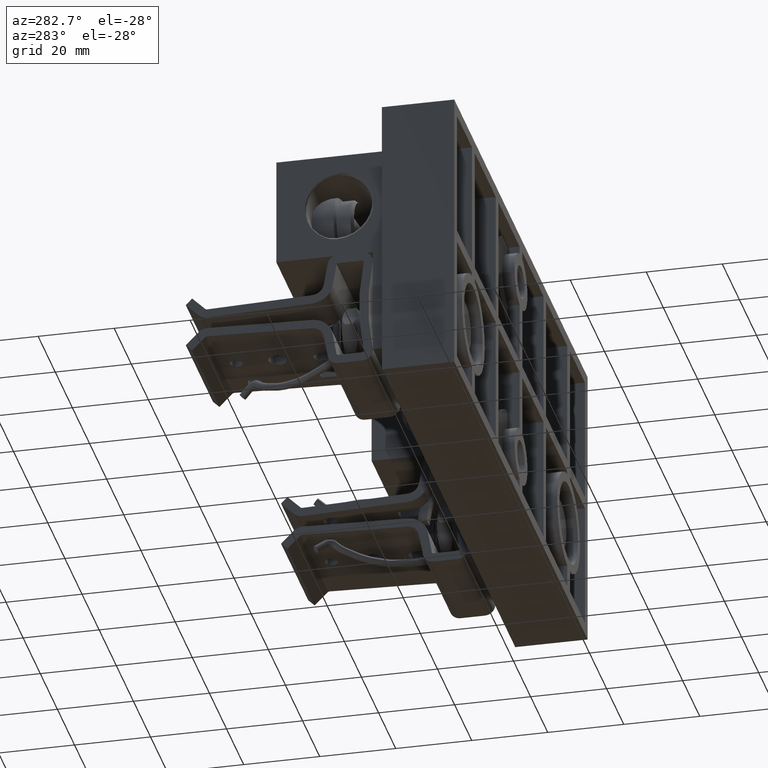
[diagram: clean part render]
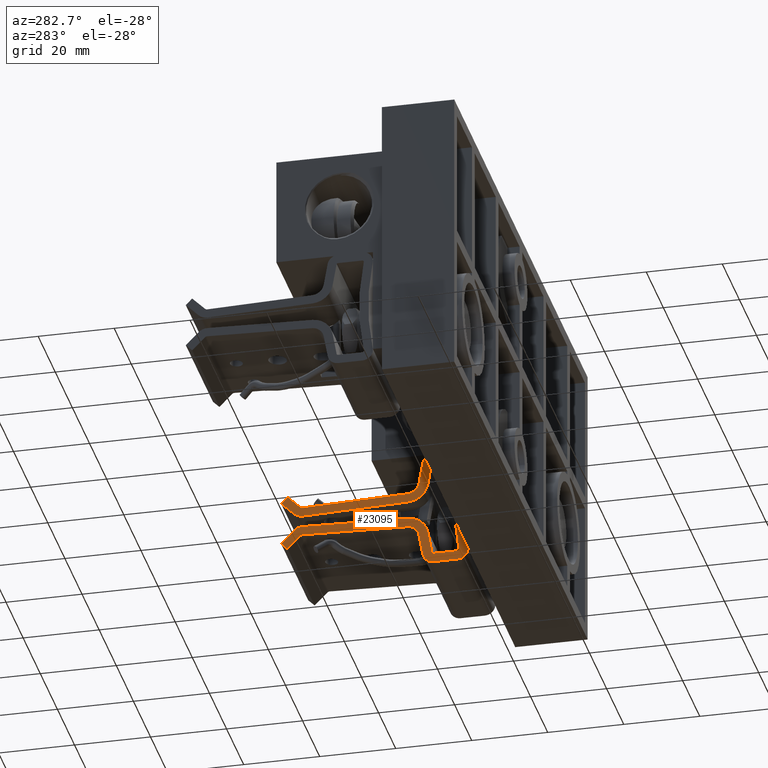
[diagram: same view with one face highlighted and labeled with its STEP entity id]
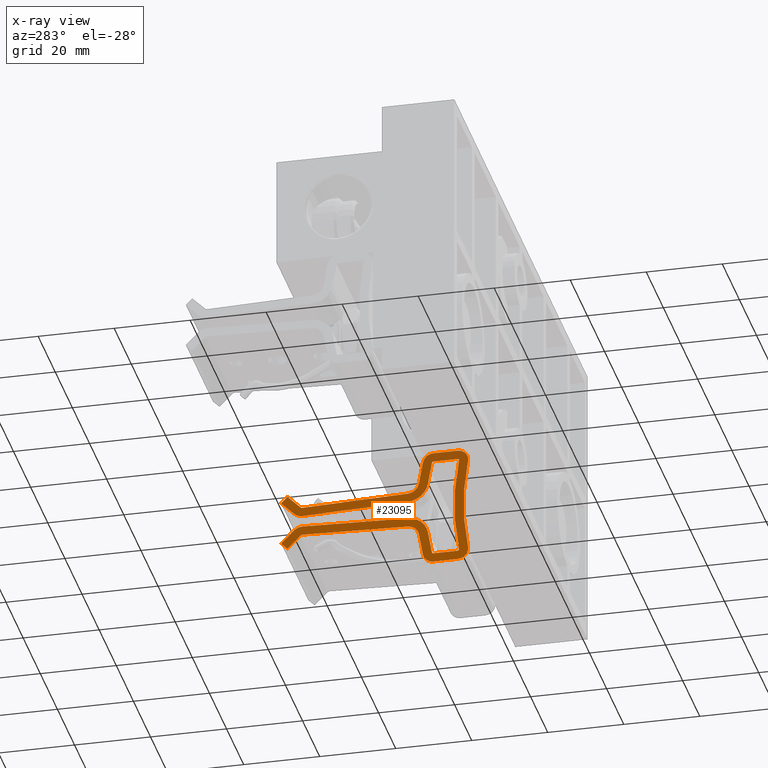
[diagram: x-ray of the same camera — body ghosted, the highlighted face saturated]
A machine part, auxiliary view. The second image highlights one B-rep face of the part: STEP entity #23095.
The next image is the same camera in x-ray: the body ghosted, the highlighted face saturated — about 24% of this face is hidden behind the body in this view.
In plain terms, the highlighted planar face has unit normal (-1, 0, -0).
Its self-contained STEP definition (entity closure, byte-faithful):
#10 = DIRECTION ( 'NONE',  ( 1.000000000000000000, 0.0000000000000000000, 2.775557561562890700E-017 ) ) ;
#108 = ORIENTED_EDGE ( 'NONE', *, *, #25646, .F. ) ;
#257 = VERTEX_POINT ( 'NONE', #19297 ) ;
#578 = EDGE_CURVE ( 'NONE', #28348, #18298, #21159, .T. ) ;
#592 = AXIS2_PLACEMENT_3D ( 'NONE', #13398, #31568, #16027 ) ;
#911 = VECTOR ( 'NONE', #9061, 39.37007874015748100 ) ;
#1053 = VERTEX_POINT ( 'NONE', #12127 ) ;
#1150 = DIRECTION ( 'NONE',  ( 8.693630771853350400E-019, -0.9995093424703525000, -0.03132210584369223700 ) ) ;
#1225 = DIRECTION ( 'NONE',  ( 0.0000000000000000000, 0.0000000000000000000, -1.000000000000000000 ) ) ;
#1336 = DIRECTION ( 'NONE',  ( -2.775557561562890700E-017, 1.232595164407830700E-032, 1.000000000000000000 ) ) ;
#1448 = AXIS2_PLACEMENT_3D ( 'NONE', #18674, #3117, #21254 ) ;
#1461 = CARTESIAN_POINT ( 'NONE',  ( 1.565000000000000400, 1.368328852831342600, -0.09189870045663711700 ) ) ;
#1486 = CARTESIAN_POINT ( 'NONE',  ( 1.565000000000000400, 1.533185342012008300, -0.9329999999999992700 ) ) ;
#1648 = VECTOR ( 'NONE', #8983, 39.37007874015748900 ) ;
#1763 = EDGE_CURVE ( 'NONE', #257, #4635, #23359, .T. ) ;
#1887 = CIRCLE ( 'NONE', #8505, 2.706760416666660800 ) ;
#1983 = VERTEX_POINT ( 'NONE', #10608 ) ;
#2396 = CARTESIAN_POINT ( 'NONE',  ( 1.565000000000000400, 0.9019392084473099000, -1.108436310423321000 ) ) ;
#2709 = CARTESIAN_POINT ( 'NONE',  ( 1.565000000000000400, 2.705063925136928800, -0.5233883476483175400 ) ) ;
#2778 = EDGE_CURVE ( 'NONE', #23495, #4005, #1887, .T. ) ;
#2886 = CARTESIAN_POINT ( 'NONE',  ( 1.565000000000000400, 2.771531962568464500, -0.9160157646462878700 ) ) ;
#3117 = DIRECTION ( 'NONE',  ( -1.000000000000000000, 0.0000000000000000000, -2.775557561562890700E-017 ) ) ;
#3402 = DIRECTION ( 'NONE',  ( -1.000000000000000000, 0.0000000000000000000, -2.775557561562890700E-017 ) ) ;
#3415 = LINE ( 'NONE', #8402, #8734 ) ;
#3620 = VECTOR ( 'NONE', #10872, 39.37007874015748100 ) ;
#3667 = VECTOR ( 'NONE', #20919, 39.37007874015748100 ) ;
#3874 = PLANE ( 'NONE',  #11065 ) ;
#3933 = EDGE_CURVE ( 'NONE', #1983, #257, #3415, .T. ) ;
#4005 = VERTEX_POINT ( 'NONE', #31984 ) ;
#4076 = ORIENTED_EDGE ( 'NONE', *, *, #14617, .F. ) ;
#4126 = DIRECTION ( 'NONE',  ( 0.0000000000000000000, 0.0000000000000000000, 1.000000000000000000 ) ) ;
#4147 = CARTESIAN_POINT ( 'NONE',  ( 1.565000000000000400, 2.705063925136928800, -0.5233883476483175400 ) ) ;
#4171 = LINE ( 'NONE', #16249, #30967 ) ;
#4308 = CARTESIAN_POINT ( 'NONE',  ( 1.565000000000000400, 2.612760314258148600, -0.5599386678087933100 ) ) ;
#4404 = CARTESIAN_POINT ( 'NONE',  ( 1.565000000000000400, 1.529270078781546500, -0.8080613321912053500 ) ) ;
#4463 = EDGE_CURVE ( 'NONE', #21452, #30017, #20781, .T. ) ;
#4563 = AXIS2_PLACEMENT_3D ( 'NONE', #21907, #6391, #24583 ) ;
#4635 = VERTEX_POINT ( 'NONE', #25459 ) ;
#4939 = DIRECTION ( 'NONE',  ( 0.0000000000000000000, 0.0000000000000000000, 1.000000000000000000 ) ) ;
#5053 = DIRECTION ( 'NONE',  ( -1.000000000000000000, 0.0000000000000000000, -2.775557561562890700E-017 ) ) ;
#5068 = ORIENTED_EDGE ( 'NONE', *, *, #33281, .F. ) ;
#5180 = VERTEX_POINT ( 'NONE', #17858 ) ;
#5211 = EDGE_CURVE ( 'NONE', #18298, #26396, #21912, .T. ) ;
#5227 = CARTESIAN_POINT ( 'NONE',  ( 1.565000000000000400, 1.260000000000000000, -0.1109999999999991000 ) ) ;
#5317 = VERTEX_POINT ( 'NONE', #11439 ) ;
#5395 = DIRECTION ( 'NONE',  ( 1.208331480069094700E-032, 1.000000000000000000, -5.463695987328529400E-016 ) ) ;
#5603 = VERTEX_POINT ( 'NONE', #2396 ) ;
#5732 = CARTESIAN_POINT ( 'NONE',  ( 1.565000000000000400, 1.275756924048195200, -1.131778370842670300 ) ) ;
#5815 = DIRECTION ( 'NONE',  ( 1.962615573354725700E-017, 0.7071067811865446900, -0.7071067811865502400 ) ) ;
#5835 = EDGE_CURVE ( 'NONE', #5180, #6478, #7632, .T. ) ;
#5851 = EDGE_CURVE ( 'NONE', #26151, #20036, #27533, .T. ) ;
#5899 = CIRCLE ( 'NONE', #30177, 0.1099999999999999600 ) ;
#5921 = DIRECTION ( 'NONE',  ( -2.733390605558794900E-017, 0.1736481776669270300, 0.9848077530122085800 ) ) ;
#6003 = CARTESIAN_POINT ( 'NONE',  ( 1.565000000000000400, 2.616675577488610100, -0.4349999999999992800 ) ) ;
#6128 = LINE ( 'NONE', #11703, #13015 ) ;
#6147 = CIRCLE ( 'NONE', #18237, 0.03099999999999995500 ) ;
#6303 = ORIENTED_EDGE ( 'NONE', *, *, #7956, .F. ) ;
#6317 = EDGE_CURVE ( 'NONE', #30999, #20492, #20090, .T. ) ;
#6318 = VECTOR ( 'NONE', #20807, 39.37007874015748100 ) ;
#6359 = LINE ( 'NONE', #15720, #12459 ) ;
#6391 = DIRECTION ( 'NONE',  ( 1.000000000000000000, 0.0000000000000000000, 2.775557561562890700E-017 ) ) ;
#6435 = DIRECTION ( 'NONE',  ( 1.000000000000000000, 0.0000000000000000000, 2.775557561562890700E-017 ) ) ;
#6466 = VECTOR ( 'NONE', #1150, 39.37007874015748900 ) ;
#6478 = VERTEX_POINT ( 'NONE', #28891 ) ;
#6479 = CARTESIAN_POINT ( 'NONE',  ( 1.565000000000000400, 1.009999999999999800, -1.128999999999999300 ) ) ;
#6722 = CARTESIAN_POINT ( 'NONE',  ( 1.565000000000000400, 2.771531962568464500, -0.3239842353537106300 ) ) ;
#7098 = DIRECTION ( 'NONE',  ( 1.000000000000000000, 0.0000000000000000000, 2.775557561562890700E-017 ) ) ;
#7351 = ORIENTED_EDGE ( 'NONE', *, *, #10119, .F. ) ;
#7410 = VECTOR ( 'NONE', #29572, 39.37007874015748900 ) ;
#7512 = EDGE_CURVE ( 'NONE', #25618, #26151, #9459, .T. ) ;
#7632 = CIRCLE ( 'NONE', #14851, 0.1100000000000000300 ) ;
#7674 = EDGE_CURVE ( 'NONE', #20492, #20075, #10601, .T. ) ;
#7733 = LINE ( 'NONE', #12174, #28418 ) ;
#7956 = EDGE_CURVE ( 'NONE', #14088, #19669, #27201, .T. ) ;
#8158 = ORIENTED_EDGE ( 'NONE', *, *, #8573, .F. ) ;
#8310 = CARTESIAN_POINT ( 'NONE',  ( 1.565000000000000400, 1.260000000000000000, -1.144999999999999400 ) ) ;
#8321 = CARTESIAN_POINT ( 'NONE',  ( 1.565000000000000400, 1.009999999999999800, -0.1109999999999991000 ) ) ;
#8347 = ORIENTED_EDGE ( 'NONE', *, *, #27508, .F. ) ;
#8361 = CIRCLE ( 'NONE', #12370, 0.1250000000000000300 ) ;
#8402 = CARTESIAN_POINT ( 'NONE',  ( 1.565000000000000400, 1.009999999999999800, -0.09499999999999912700 ) ) ;
#8430 = CIRCLE ( 'NONE', #1448, 0.1250000000000000300 ) ;
#8505 = AXIS2_PLACEMENT_3D ( 'NONE', #24563, #9027, #27164 ) ;
#8573 = EDGE_CURVE ( 'NONE', #23989, #28348, #8430, .T. ) ;
#8634 = DIRECTION ( 'NONE',  ( 0.0000000000000000000, 0.0000000000000000000, -1.000000000000000000 ) ) ;
#8734 = VECTOR ( 'NONE', #16207, 39.37007874015748100 ) ;
#8822 = DIRECTION ( 'NONE',  ( 1.000000000000000000, 0.0000000000000000000, 2.775557561562890700E-017 ) ) ;
#8872 = EDGE_CURVE ( 'NONE', #20075, #14088, #8361, .T. ) ;
#8983 = DIRECTION ( 'NONE',  ( -8.693630771853283000E-019, -0.9995093424703525000, 0.03132210584369221600 ) ) ;
#9027 = DIRECTION ( 'NONE',  ( 1.000000000000000000, 0.0000000000000000000, 2.775557561562890700E-017 ) ) ;
#9061 = DIRECTION ( 'NONE',  ( -1.208331480069094200E-032, -1.000000000000000000, 5.463695987328527400E-016 ) ) ;
#9133 = DIRECTION ( 'NONE',  ( 0.0000000000000000000, 0.0000000000000000000, 1.000000000000000000 ) ) ;
#9283 = VERTEX_POINT ( 'NONE', #29422 ) ;
#9459 = LINE ( 'NONE', #24527, #1648 ) ;
#9503 = VERTEX_POINT ( 'NONE', #27819 ) ;
#9809 = DIRECTION ( 'NONE',  ( 2.733390605558795200E-017, 0.1736481776669266400, -0.9848077530122085800 ) ) ;
#9844 = VECTOR ( 'NONE', #19630, 39.37007874015748100 ) ;
#9948 = DIRECTION ( 'NONE',  ( -1.000000000000000000, 0.0000000000000000000, -2.775557561562890700E-017 ) ) ;
#9994 = VERTEX_POINT ( 'NONE', #32009 ) ;
#10056 = EDGE_CURVE ( 'NONE', #4635, #26429, #7733, .T. ) ;
#10119 = EDGE_CURVE ( 'NONE', #6478, #5603, #17478, .T. ) ;
#10246 = DIRECTION ( 'NONE',  ( -1.000000000000000000, 0.0000000000000000000, -2.775557561562890700E-017 ) ) ;
#10450 = CARTESIAN_POINT ( 'NONE',  ( 1.565000000000000400, 2.771531962568464500, -0.9160157646462878700 ) ) ;
#10601 = LINE ( 'NONE', #26078, #3667 ) ;
#10608 = CARTESIAN_POINT ( 'NONE',  ( 1.565000000000000400, 1.009999999999999800, -0.09499999999999912700 ) ) ;
#10655 = LINE ( 'NONE', #28946, #16731 ) ;
#10658 = CARTESIAN_POINT ( 'NONE',  ( 1.565000000000000400, 2.837999999999999600, -0.3904522727852462500 ) ) ;
#10872 = DIRECTION ( 'NONE',  ( 2.733390605558795200E-017, -0.1736481776669276900, -0.9848077530122085800 ) ) ;
#10946 = DIRECTION ( 'NONE',  ( 0.0000000000000000000, 0.0000000000000000000, 1.000000000000000000 ) ) ;
#11065 = AXIS2_PLACEMENT_3D ( 'NONE', #32488, #16941, #1336 ) ;
#11439 = CARTESIAN_POINT ( 'NONE',  ( 1.565000000000000400, 1.526325800832239600, -0.5258925460010064300 ) ) ;
#11591 = ORIENTED_EDGE ( 'NONE', *, *, #7512, .F. ) ;
#11676 = AXIS2_PLACEMENT_3D ( 'NONE', #6479, #24670, #9133 ) ;
#11703 = CARTESIAN_POINT ( 'NONE',  ( 1.565000000000000400, 2.638595887705393700, -0.4569203102167820900 ) ) ;
#12127 = CARTESIAN_POINT ( 'NONE',  ( 1.565000000000000400, 1.260000000000000000, -0.0009999999999992517000 ) ) ;
#12174 = CARTESIAN_POINT ( 'NONE',  ( 1.565000000000000400, 1.275756924048195200, -0.1082216291573282500 ) ) ;
#12370 = AXIS2_PLACEMENT_3D ( 'NONE', #22618, #7098, #25279 ) ;
#12459 = VECTOR ( 'NONE', #5395, 39.37007874015748100 ) ;
#12482 = EDGE_CURVE ( 'NONE', #24918, #25618, #6147, .T. ) ;
#12521 = ORIENTED_EDGE ( 'NONE', *, *, #1763, .F. ) ;
#12869 = DIRECTION ( 'NONE',  ( -1.000000000000000000, 0.0000000000000000000, -2.775557561562890700E-017 ) ) ;
#13015 = VECTOR ( 'NONE', #32462, 39.37007874015748100 ) ;
#13398 = CARTESIAN_POINT ( 'NONE',  ( 1.565000000000000400, 1.533185342012008300, -0.3069999999999991600 ) ) ;
#13529 = CARTESIAN_POINT ( 'NONE',  ( 1.565000000000000400, 2.615704592207456000, -0.7740152103834183600 ) ) ;
#13687 = ORIENTED_EDGE ( 'NONE', *, *, #29595, .F. ) ;
#13703 = AXIS2_PLACEMENT_3D ( 'NONE', #21949, #6435, #24627 ) ;
#14088 = VERTEX_POINT ( 'NONE', #16131 ) ;
#14171 = EDGE_CURVE ( 'NONE', #14861, #23989, #4171, .T. ) ;
#14295 = CIRCLE ( 'NONE', #592, 0.2190000000000001100 ) ;
#14617 = EDGE_CURVE ( 'NONE', #17216, #24918, #6128, .T. ) ;
#14851 = AXIS2_PLACEMENT_3D ( 'NONE', #8321, #26473, #10946 ) ;
#14861 = VERTEX_POINT ( 'NONE', #17564 ) ;
#14873 = LINE ( 'NONE', #4147, #20125 ) ;
#14919 = LINE ( 'NONE', #27431, #20972 ) ;
#15328 = ORIENTED_EDGE ( 'NONE', *, *, #7674, .F. ) ;
#15611 = ORIENTED_EDGE ( 'NONE', *, *, #5851, .F. ) ;
#15639 = CARTESIAN_POINT ( 'NONE',  ( 1.565000000000000400, 1.260000000000000000, -1.128999999999999300 ) ) ;
#15720 = CARTESIAN_POINT ( 'NONE',  ( 1.565000000000000400, 1.009999999999999800, -1.238999999999999200 ) ) ;
#15729 = EDGE_LOOP ( 'NONE', ( #32953, #6303, #29192, #15328, #19902, #20447, #29431, #28004, #8158, #28194, #23774, #20926, #32321, #7351, #22087, #31207, #30319, #21900, #15611, #11591, #23116, #4076, #24162, #5068, #13687, #8347, #23157, #18037, #12521, #30165, #25256, #26168, #26732, #18229, #26830, #108 ) ) ;
#16027 = DIRECTION ( 'NONE',  ( 0.0000000000000000000, 0.0000000000000000000, -1.000000000000000000 ) ) ;
#16131 = CARTESIAN_POINT ( 'NONE',  ( 1.565000000000000400, 2.612760314258148600, -0.6800613321912052400 ) ) ;
#16207 = DIRECTION ( 'NONE',  ( -3.081487911019577400E-033, 1.000000000000000000, 3.697785493223492800E-032 ) ) ;
#16249 = CARTESIAN_POINT ( 'NONE',  ( 1.565000000000000400, 1.368328852831342600, -1.148101299543361500 ) ) ;
#16350 = VERTEX_POINT ( 'NONE', #10658 ) ;
#16573 = CARTESIAN_POINT ( 'NONE',  ( 1.565000000000000400, 1.410084372885482200, -0.3287060222083650300 ) ) ;
#16620 = AXIS2_PLACEMENT_3D ( 'NONE', #18956, #3402, #21541 ) ;
#16651 = CARTESIAN_POINT ( 'NONE',  ( 1.565000000000000400, 1.410084372885482200, -0.9112939777916334600 ) ) ;
#16731 = VECTOR ( 'NONE', #31572, 39.37007874015748900 ) ;
#16831 = DIRECTION ( 'NONE',  ( -1.000000000000000000, 0.0000000000000000000, -2.775557561562890700E-017 ) ) ;
#16941 = DIRECTION ( 'NONE',  ( -1.000000000000000000, 3.798227098303919500E-065, -2.775557561562890700E-017 ) ) ;
#17100 = DIRECTION ( 'NONE',  ( 3.081487911019577400E-033, -1.000000000000000000, -3.697785493223492800E-032 ) ) ;
#17102 = DIRECTION ( 'NONE',  ( -1.962615573354721400E-017, 0.7071067811865465700, 0.7071067811865484600 ) ) ;
#17216 = VERTEX_POINT ( 'NONE', #6722 ) ;
#17478 = CIRCLE ( 'NONE', #17515, 2.612760416666660500 ) ;
#17515 = AXIS2_PLACEMENT_3D ( 'NONE', #25780, #10246, #28357 ) ;
#17564 = CARTESIAN_POINT ( 'NONE',  ( 1.565000000000000400, 1.368328852831342600, -1.148101299543361500 ) ) ;
#17600 = CARTESIAN_POINT ( 'NONE',  ( 1.565000000000000400, 1.526325800832239600, -0.7141074539989921100 ) ) ;
#17746 = CARTESIAN_POINT ( 'NONE',  ( 1.565000000000000400, 1.526325800832239600, -0.5258925460010064300 ) ) ;
#17835 = CIRCLE ( 'NONE', #13703, 0.1099999999999996400 ) ;
#17858 = CARTESIAN_POINT ( 'NONE',  ( 1.565000000000000400, 1.009999999999999800, -0.0009999999999991151000 ) ) ;
#17908 = CARTESIAN_POINT ( 'NONE',  ( 1.565000000000000400, 2.638595887705393700, -0.4569203102167820900 ) ) ;
#18032 = EDGE_CURVE ( 'NONE', #30017, #9994, #14919, .T. ) ;
#18037 = ORIENTED_EDGE ( 'NONE', *, *, #10056, .F. ) ;
#18222 = DIRECTION ( 'NONE',  ( 0.0000000000000000000, 0.0000000000000000000, -1.000000000000000000 ) ) ;
#18229 = ORIENTED_EDGE ( 'NONE', *, *, #18032, .F. ) ;
#18237 = AXIS2_PLACEMENT_3D ( 'NONE', #6003, #24185, #8634 ) ;
#18259 = EDGE_CURVE ( 'NONE', #9503, #31922, #6359, .T. ) ;
#18298 = VERTEX_POINT ( 'NONE', #13529 ) ;
#18428 = CARTESIAN_POINT ( 'NONE',  ( 1.565000000000000400, 2.615704592207455500, -0.4659847896165801300 ) ) ;
#18620 = CARTESIAN_POINT ( 'NONE',  ( 1.565000000000000400, 1.529270078781546500, -0.8080613321912053500 ) ) ;
#18674 = CARTESIAN_POINT ( 'NONE',  ( 1.565000000000000400, 1.533185342012008300, -0.9329999999999992700 ) ) ;
#18944 = CIRCLE ( 'NONE', #24553, 0.01599999999999975700 ) ;
#18956 = CARTESIAN_POINT ( 'NONE',  ( 1.565000000000000400, 1.533185342012008300, -0.3069999999999991600 ) ) ;
#19074 = CARTESIAN_POINT ( 'NONE',  ( 1.565000000000000400, 1.275756924048195200, -1.131778370842670300 ) ) ;
#19297 = CARTESIAN_POINT ( 'NONE',  ( 1.565000000000000400, 1.260000000000000000, -0.09499999999999912700 ) ) ;
#19381 = EDGE_CURVE ( 'NONE', #9994, #23495, #33790, .T. ) ;
#19456 = EDGE_CURVE ( 'NONE', #20036, #9283, #23618, .T. ) ;
#19630 = DIRECTION ( 'NONE',  ( -2.733390605558795200E-017, -0.1736481776669272500, 0.9848077530122085800 ) ) ;
#19661 = DIRECTION ( 'NONE',  ( 1.000000000000000000, 0.0000000000000000000, 2.775557561562890700E-017 ) ) ;
#19669 = VERTEX_POINT ( 'NONE', #17600 ) ;
#19814 = VERTEX_POINT ( 'NONE', #33600 ) ;
#19902 = ORIENTED_EDGE ( 'NONE', *, *, #6317, .F. ) ;
#20036 = VERTEX_POINT ( 'NONE', #16573 ) ;
#20075 = VERTEX_POINT ( 'NONE', #27005 ) ;
#20090 = LINE ( 'NONE', #2886, #6318 ) ;
#20120 = LINE ( 'NONE', #21200, #27070 ) ;
#20125 = VECTOR ( 'NONE', #17102, 39.37007874015748900 ) ;
#20318 = DIRECTION ( 'NONE',  ( 8.693630771853292600E-019, 0.9995093424703525000, -0.03132210584369225100 ) ) ;
#20447 = ORIENTED_EDGE ( 'NONE', *, *, #22928, .F. ) ;
#20492 = VERTEX_POINT ( 'NONE', #32071 ) ;
#20522 = EDGE_CURVE ( 'NONE', #4005, #1983, #18944, .T. ) ;
#20781 = CIRCLE ( 'NONE', #26401, 0.01600000000000004900 ) ;
#20807 = DIRECTION ( 'NONE',  ( -1.962615573354716500E-017, 0.7071067811865483500, 0.7071067811865466800 ) ) ;
#20878 = AXIS2_PLACEMENT_3D ( 'NONE', #28410, #12869, #31029 ) ;
#20919 = DIRECTION ( 'NONE',  ( -1.962615573354723000E-017, -0.7071067811865459100, 0.7071067811865492400 ) ) ;
#20926 = ORIENTED_EDGE ( 'NONE', *, *, #18259, .F. ) ;
#20970 = EDGE_CURVE ( 'NONE', #9283, #1053, #5899, .T. ) ;
#20972 = VECTOR ( 'NONE', #17100, 39.37007874015748100 ) ;
#21022 = EDGE_CURVE ( 'NONE', #19669, #19814, #22077, .T. ) ;
#21118 = CARTESIAN_POINT ( 'NONE',  ( 1.565000000000000400, 1.317512444102334500, -0.3450289509090560500 ) ) ;
#21159 = LINE ( 'NONE', #4404, #7410 ) ;
#21200 = CARTESIAN_POINT ( 'NONE',  ( 1.565000000000000400, 2.638595887705393700, -0.7830796897832164000 ) ) ;
#21254 = DIRECTION ( 'NONE',  ( 0.0000000000000000000, 0.0000000000000000000, 1.000000000000000000 ) ) ;
#21447 = CARTESIAN_POINT ( 'NONE',  ( 1.565000000000000400, 1.260000000000000000, -1.238999999999999400 ) ) ;
#21452 = VERTEX_POINT ( 'NONE', #19074 ) ;
#21541 = DIRECTION ( 'NONE',  ( 0.0000000000000000000, 0.0000000000000000000, -1.000000000000000000 ) ) ;
#21900 = ORIENTED_EDGE ( 'NONE', *, *, #19456, .F. ) ;
#21907 = CARTESIAN_POINT ( 'NONE',  ( 1.565000000000000400, 2.616675577488610100, -0.4349999999999992800 ) ) ;
#21912 = CIRCLE ( 'NONE', #20878, 0.03100000000000002400 ) ;
#21949 = CARTESIAN_POINT ( 'NONE',  ( 1.565000000000000400, 1.009999999999999800, -1.128999999999999300 ) ) ;
#22077 = CIRCLE ( 'NONE', #29530, 0.2190000000000000300 ) ;
#22087 = ORIENTED_EDGE ( 'NONE', *, *, #5835, .F. ) ;
#22305 = AXIS2_PLACEMENT_3D ( 'NONE', #5227, #5053, #4939 ) ;
#22618 = CARTESIAN_POINT ( 'NONE',  ( 1.565000000000000400, 2.616675577488611000, -0.8049999999999993800 ) ) ;
#22928 = EDGE_CURVE ( 'NONE', #26396, #30999, #20120, .T. ) ;
#23095 = ADVANCED_FACE ( 'NONE', ( #27047 ), #3874, .T. ) ;
#23116 = ORIENTED_EDGE ( 'NONE', *, *, #12482, .F. ) ;
#23157 = ORIENTED_EDGE ( 'NONE', *, *, #24447, .F. ) ;
#23359 = CIRCLE ( 'NONE', #22305, 0.01599999999999998000 ) ;
#23495 = VERTEX_POINT ( 'NONE', #24970 ) ;
#23525 = LINE ( 'NONE', #5732, #3620 ) ;
#23618 = LINE ( 'NONE', #1461, #9844 ) ;
#23774 = ORIENTED_EDGE ( 'NONE', *, *, #27180, .F. ) ;
#23989 = VERTEX_POINT ( 'NONE', #16651 ) ;
#24162 = ORIENTED_EDGE ( 'NONE', *, *, #27774, .F. ) ;
#24185 = DIRECTION ( 'NONE',  ( -1.000000000000000000, 0.0000000000000000000, -2.775557561562890700E-017 ) ) ;
#24280 = AXIS2_PLACEMENT_3D ( 'NONE', #15639, #10, #18222 ) ;
#24372 = CARTESIAN_POINT ( 'NONE',  ( 1.565000000000000400, 1.260000000000000000, -0.1109999999999991000 ) ) ;
#24447 = EDGE_CURVE ( 'NONE', #26429, #5317, #14295, .T. ) ;
#24503 = VECTOR ( 'NONE', #20318, 39.37007874015748900 ) ;
#24527 = CARTESIAN_POINT ( 'NONE',  ( 1.565000000000000400, 1.529270078781546500, -0.4319386678087933100 ) ) ;
#24553 = AXIS2_PLACEMENT_3D ( 'NONE', #25497, #9948, #28077 ) ;
#24563 = CARTESIAN_POINT ( 'NONE',  ( 1.565000000000000400, -1.664760416666659600, -0.6199999999999994400 ) ) ;
#24583 = DIRECTION ( 'NONE',  ( 0.0000000000000000000, 0.0000000000000000000, -1.000000000000000000 ) ) ;
#24602 = CARTESIAN_POINT ( 'NONE',  ( 1.565000000000000400, 1.009999999999999800, -0.0009999999999991151000 ) ) ;
#24627 = DIRECTION ( 'NONE',  ( 0.0000000000000000000, 0.0000000000000000000, 1.000000000000000000 ) ) ;
#24670 = DIRECTION ( 'NONE',  ( -1.000000000000000000, 0.0000000000000000000, -2.775557561562890700E-017 ) ) ;
#24918 = VERTEX_POINT ( 'NONE', #17908 ) ;
#24970 = CARTESIAN_POINT ( 'NONE',  ( 1.565000000000000400, 0.9942820666832451500, -1.126008917879755400 ) ) ;
#25216 = EDGE_CURVE ( 'NONE', #5603, #9503, #17835, .T. ) ;
#25256 = ORIENTED_EDGE ( 'NONE', *, *, #20522, .F. ) ;
#25279 = DIRECTION ( 'NONE',  ( 0.0000000000000000000, 0.0000000000000000000, 1.000000000000000000 ) ) ;
#25459 = CARTESIAN_POINT ( 'NONE',  ( 1.565000000000000400, 1.275756924048195200, -0.1082216291573282500 ) ) ;
#25497 = CARTESIAN_POINT ( 'NONE',  ( 1.565000000000000400, 1.009999999999999800, -0.1109999999999991000 ) ) ;
#25618 = VERTEX_POINT ( 'NONE', #18428 ) ;
#25646 = EDGE_CURVE ( 'NONE', #19814, #21452, #23525, .T. ) ;
#25780 = CARTESIAN_POINT ( 'NONE',  ( 1.565000000000000400, -1.664760416666659600, -0.6199999999999994400 ) ) ;
#26078 = CARTESIAN_POINT ( 'NONE',  ( 1.565000000000000400, 2.705063925136928800, -0.7166116523516811200 ) ) ;
#26151 = VERTEX_POINT ( 'NONE', #33093 ) ;
#26168 = ORIENTED_EDGE ( 'NONE', *, *, #2778, .F. ) ;
#26388 = CARTESIAN_POINT ( 'NONE',  ( 1.565000000000000400, 2.638595887705393700, -0.7830796897832164000 ) ) ;
#26396 = VERTEX_POINT ( 'NONE', #26388 ) ;
#26401 = AXIS2_PLACEMENT_3D ( 'NONE', #32399, #16831, #1225 ) ;
#26429 = VERTEX_POINT ( 'NONE', #21118 ) ;
#26473 = DIRECTION ( 'NONE',  ( 1.000000000000000000, 0.0000000000000000000, 2.775557561562890700E-017 ) ) ;
#26732 = ORIENTED_EDGE ( 'NONE', *, *, #19381, .F. ) ;
#26830 = ORIENTED_EDGE ( 'NONE', *, *, #4463, .F. ) ;
#26917 = CIRCLE ( 'NONE', #24280, 0.1099999999999999200 ) ;
#26964 = DIRECTION ( 'NONE',  ( 0.0000000000000000000, 0.0000000000000000000, 1.000000000000000000 ) ) ;
#27005 = CARTESIAN_POINT ( 'NONE',  ( 1.565000000000000400, 2.705063925136928800, -0.7166116523516810100 ) ) ;
#27047 = FACE_OUTER_BOUND ( 'NONE', #15729, .T. ) ;
#27064 = VERTEX_POINT ( 'NONE', #4308 ) ;
#27070 = VECTOR ( 'NONE', #5815, 39.37007874015748900 ) ;
#27164 = DIRECTION ( 'NONE',  ( 0.0000000000000000000, 0.0000000000000000000, 1.000000000000000000 ) ) ;
#27180 = EDGE_CURVE ( 'NONE', #31922, #14861, #26917, .T. ) ;
#27191 = EDGE_CURVE ( 'NONE', #1053, #5180, #27758, .T. ) ;
#27201 = LINE ( 'NONE', #32324, #6466 ) ;
#27431 = CARTESIAN_POINT ( 'NONE',  ( 1.565000000000000400, 1.009999999999999800, -1.144999999999999400 ) ) ;
#27508 = EDGE_CURVE ( 'NONE', #5317, #27064, #31361, .T. ) ;
#27533 = CIRCLE ( 'NONE', #16620, 0.1250000000000001100 ) ;
#27758 = LINE ( 'NONE', #24602, #911 ) ;
#27774 = EDGE_CURVE ( 'NONE', #16350, #17216, #10655, .T. ) ;
#27819 = CARTESIAN_POINT ( 'NONE',  ( 1.565000000000000400, 1.009999999999999800, -1.238999999999999200 ) ) ;
#28004 = ORIENTED_EDGE ( 'NONE', *, *, #578, .F. ) ;
#28077 = DIRECTION ( 'NONE',  ( 0.0000000000000000000, 0.0000000000000000000, 1.000000000000000000 ) ) ;
#28194 = ORIENTED_EDGE ( 'NONE', *, *, #14171, .F. ) ;
#28348 = VERTEX_POINT ( 'NONE', #18620 ) ;
#28357 = DIRECTION ( 'NONE',  ( 0.0000000000000000000, 0.0000000000000000000, 1.000000000000000000 ) ) ;
#28410 = CARTESIAN_POINT ( 'NONE',  ( 1.565000000000000400, 2.616675577488611000, -0.8049999999999993800 ) ) ;
#28418 = VECTOR ( 'NONE', #9809, 39.37007874015748900 ) ;
#28891 = CARTESIAN_POINT ( 'NONE',  ( 1.565000000000000400, 0.9019392084473096800, -0.1315636895766766300 ) ) ;
#28946 = CARTESIAN_POINT ( 'NONE',  ( 1.565000000000000400, 2.771531962568464500, -0.3239842353537106300 ) ) ;
#29192 = ORIENTED_EDGE ( 'NONE', *, *, #8872, .F. ) ;
#29422 = CARTESIAN_POINT ( 'NONE',  ( 1.565000000000000400, 1.368328852831342600, -0.09189870045663711700 ) ) ;
#29431 = ORIENTED_EDGE ( 'NONE', *, *, #5211, .F. ) ;
#29530 = AXIS2_PLACEMENT_3D ( 'NONE', #1486, #19661, #4126 ) ;
#29572 = DIRECTION ( 'NONE',  ( -8.693630771853352300E-019, 0.9995093424703525000, 0.03132210584369225100 ) ) ;
#29595 = EDGE_CURVE ( 'NONE', #27064, #32257, #29858, .T. ) ;
#29858 = CIRCLE ( 'NONE', #4563, 0.1250000000000001100 ) ;
#30017 = VERTEX_POINT ( 'NONE', #8310 ) ;
#30165 = ORIENTED_EDGE ( 'NONE', *, *, #3933, .F. ) ;
#30177 = AXIS2_PLACEMENT_3D ( 'NONE', #24372, #8822, #26964 ) ;
#30319 = ORIENTED_EDGE ( 'NONE', *, *, #20970, .F. ) ;
#30967 = VECTOR ( 'NONE', #5921, 39.37007874015748900 ) ;
#30999 = VERTEX_POINT ( 'NONE', #10450 ) ;
#31029 = DIRECTION ( 'NONE',  ( 0.0000000000000000000, 0.0000000000000000000, 1.000000000000000000 ) ) ;
#31207 = ORIENTED_EDGE ( 'NONE', *, *, #27191, .F. ) ;
#31361 = LINE ( 'NONE', #17746, #24503 ) ;
#31568 = DIRECTION ( 'NONE',  ( 1.000000000000000000, 0.0000000000000000000, 2.775557561562890700E-017 ) ) ;
#31572 = DIRECTION ( 'NONE',  ( -1.962615573354713400E-017, -0.7071067811865491300, 0.7071067811865458000 ) ) ;
#31922 = VERTEX_POINT ( 'NONE', #21447 ) ;
#31984 = CARTESIAN_POINT ( 'NONE',  ( 1.565000000000000400, 0.9942820666832451500, -0.1139910821202431600 ) ) ;
#32009 = CARTESIAN_POINT ( 'NONE',  ( 1.565000000000000400, 1.009999999999999800, -1.144999999999999100 ) ) ;
#32071 = CARTESIAN_POINT ( 'NONE',  ( 1.565000000000000400, 2.837999999999999600, -0.8495477272147522500 ) ) ;
#32257 = VERTEX_POINT ( 'NONE', #2709 ) ;
#32321 = ORIENTED_EDGE ( 'NONE', *, *, #25216, .F. ) ;
#32324 = CARTESIAN_POINT ( 'NONE',  ( 1.565000000000000400, 1.526325800832239600, -0.7141074539989921100 ) ) ;
#32399 = CARTESIAN_POINT ( 'NONE',  ( 1.565000000000000400, 1.260000000000000000, -1.128999999999999300 ) ) ;
#32462 = DIRECTION ( 'NONE',  ( 1.962615573354724500E-017, -0.7071067811865454600, -0.7071067811865495700 ) ) ;
#32488 = CARTESIAN_POINT ( 'NONE',  ( 1.565000000000000400, 1.533185342012008300, -0.9329999999999992700 ) ) ;
#32953 = ORIENTED_EDGE ( 'NONE', *, *, #21022, .F. ) ;
#33093 = CARTESIAN_POINT ( 'NONE',  ( 1.565000000000000400, 1.529270078781546500, -0.4319386678087933100 ) ) ;
#33281 = EDGE_CURVE ( 'NONE', #32257, #16350, #14873, .T. ) ;
#33600 = CARTESIAN_POINT ( 'NONE',  ( 1.565000000000000400, 1.317512444102334700, -0.8949710490909422700 ) ) ;
#33790 = CIRCLE ( 'NONE', #11676, 0.01599999999999977500 ) ;